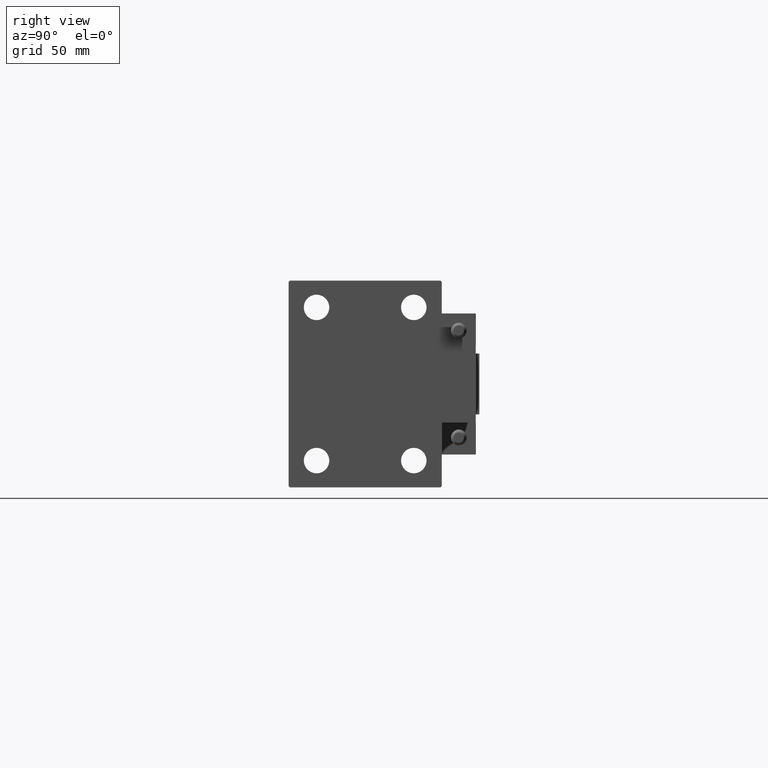
[diagram: clean part render]
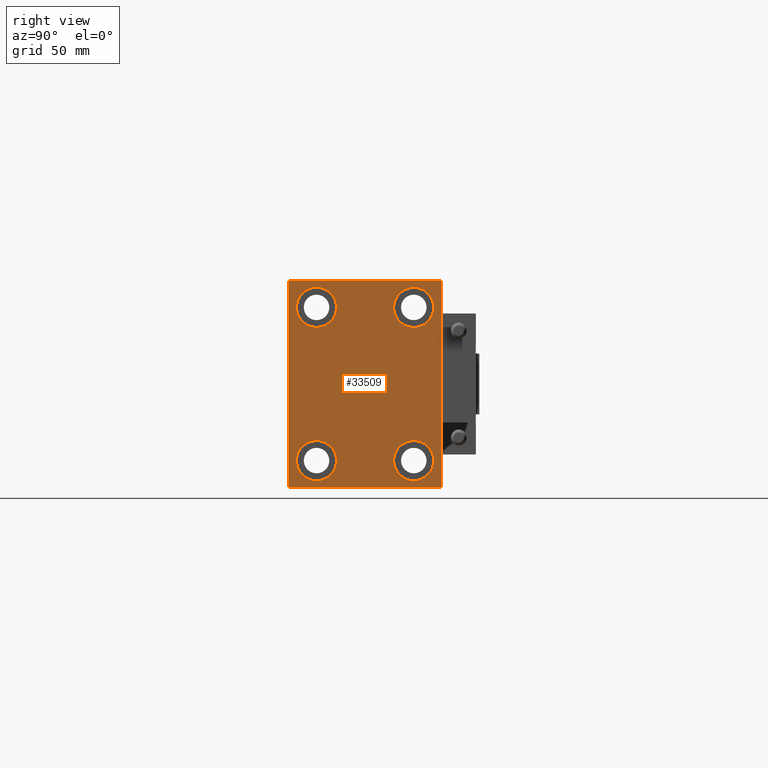
[diagram: same view with one face highlighted and labeled with its STEP entity id]
A machine part, right view. The second image highlights one B-rep face of the part: STEP entity #33509.
In plain terms, the highlighted planar face has unit normal (1, 0, 0).
Its self-contained STEP definition (entity closure, byte-faithful):
#137 = CARTESIAN_POINT ( 'NONE',  ( 183.0000000000000000, -19.99999999999999645, 39.74999999999999289 ) ) ;
#719 = ORIENTED_EDGE ( 'NONE', *, *, #50217, .T. ) ;
#722 = CARTESIAN_POINT ( 'NONE',  ( 183.0000000000000000, 31.00000000000002842, 42.50000000000000711 ) ) ;
#780 = DIRECTION ( 'NONE',  ( 0.000000000000000000, 0.000000000000000000, 1.000000000000000000 ) ) ;
#1802 = VECTOR ( 'NONE', #11736, 1000.000000000000000 ) ;
#1815 = PLANE ( 'NONE',  #49738 ) ;
#3113 = CARTESIAN_POINT ( 'NONE',  ( 183.0000000000000000, -20.00000000000000355, -31.49999999999999289 ) ) ;
#3131 = DIRECTION ( 'NONE',  ( -1.000000000000000000, -0.000000000000000000, -0.000000000000000000 ) ) ;
#3157 = VERTEX_POINT ( 'NONE', #47952 ) ;
#3392 = ORIENTED_EDGE ( 'NONE', *, *, #45235, .T. ) ;
#4288 = ORIENTED_EDGE ( 'NONE', *, *, #22567, .T. ) ;
#4429 = CIRCLE ( 'NONE', #42836, 8.250000000000000000 ) ;
#4623 = DIRECTION ( 'NONE',  ( -1.000000000000000000, -0.000000000000000000, -0.000000000000000000 ) ) ;
#5313 = ORIENTED_EDGE ( 'NONE', *, *, #13680, .T. ) ;
#5923 = CARTESIAN_POINT ( 'NONE',  ( 183.0000000000000000, 0.000000000000000000, 0.000000000000000000 ) ) ;
#6142 = CARTESIAN_POINT ( 'NONE',  ( 183.0000000000000000, -36.74999999999997868, 36.74999999999997868 ) ) ;
#6387 = DIRECTION ( 'NONE',  ( -1.000000000000000000, -0.000000000000000000, -0.000000000000000000 ) ) ;
#6424 = DIRECTION ( 'NONE',  ( -1.000000000000000000, -0.000000000000000000, -0.000000000000000000 ) ) ;
#6895 = LINE ( 'NONE', #6142, #34481 ) ;
#7136 = VERTEX_POINT ( 'NONE', #29167 ) ;
#7148 = LINE ( 'NONE', #23512, #1802 ) ;
#7907 = CARTESIAN_POINT ( 'NONE',  ( 183.0000000000000000, 31.50000000000000000, 42.00000000000003553 ) ) ;
#8346 = VECTOR ( 'NONE', #44273, 1000.000000000000000 ) ;
#9292 = CARTESIAN_POINT ( 'NONE',  ( 183.0000000000000000, 19.99999999999999645, -39.74999999999999289 ) ) ;
#9862 = EDGE_CURVE ( 'NONE', #18429, #45529, #33881, .T. ) ;
#9930 = CARTESIAN_POINT ( 'NONE',  ( 183.0000000000000000, -19.99999999999999645, 31.50000000000000000 ) ) ;
#10083 = CARTESIAN_POINT ( 'NONE',  ( 183.0000000000000000, 19.99999999999999645, -31.49999999999999289 ) ) ;
#10250 = VERTEX_POINT ( 'NONE', #48829 ) ;
#10555 = EDGE_LOOP ( 'NONE', ( #33079, #4288 ) ) ;
#10557 = DIRECTION ( 'NONE',  ( 0.000000000000000000, 0.000000000000000000, 1.000000000000000000 ) ) ;
#10869 = CARTESIAN_POINT ( 'NONE',  ( 183.0000000000000000, -31.50000000000000000, 41.99999999999996447 ) ) ;
#11736 = DIRECTION ( 'NONE',  ( 0.000000000000000000, 0.000000000000000000, -1.000000000000000000 ) ) ;
#12302 = CARTESIAN_POINT ( 'NONE',  ( 183.0000000000000000, -20.00000000000000355, -31.49999999999999289 ) ) ;
#12367 = CARTESIAN_POINT ( 'NONE',  ( 183.0000000000000000, 31.50000000000001421, -42.50000000000000711 ) ) ;
#12437 = DIRECTION ( 'NONE',  ( 0.000000000000000000, 1.000000000000000000, 0.000000000000000000 ) ) ;
#12559 = CARTESIAN_POINT ( 'NONE',  ( 183.0000000000000000, -19.99999999999999645, 31.50000000000000000 ) ) ;
#12704 = CARTESIAN_POINT ( 'NONE',  ( 183.0000000000000000, 20.00000000000000355, 39.74999999999999289 ) ) ;
#12809 = LINE ( 'NONE', #13063, #8346 ) ;
#12838 = FACE_BOUND ( 'NONE', #28590, .T. ) ;
#13063 = CARTESIAN_POINT ( 'NONE',  ( 183.0000000000000000, 31.50000000000000000, 42.50000000000000711 ) ) ;
#13399 = ORIENTED_EDGE ( 'NONE', *, *, #50251, .T. ) ;
#13680 = EDGE_CURVE ( 'NONE', #50250, #34160, #32534, .T. ) ;
#13723 = EDGE_LOOP ( 'NONE', ( #13399, #20970 ) ) ;
#14056 = CARTESIAN_POINT ( 'NONE',  ( 183.0000000000000000, 20.00000000000000355, 31.50000000000000000 ) ) ;
#14239 = VECTOR ( 'NONE', #12437, 1000.000000000000000 ) ;
#14688 = CARTESIAN_POINT ( 'NONE',  ( 183.0000000000000000, 36.75000000000002132, 36.75000000000002132 ) ) ;
#14718 = AXIS2_PLACEMENT_3D ( 'NONE', #12302, #4623, #780 ) ;
#14756 = VECTOR ( 'NONE', #32313, 1000.000000000000114 ) ;
#15367 = AXIS2_PLACEMENT_3D ( 'NONE', #9930, #18100, #33946 ) ;
#16309 = CARTESIAN_POINT ( 'NONE',  ( 183.0000000000000000, -30.99999999999997158, 42.49999999999999289 ) ) ;
#16610 = VERTEX_POINT ( 'NONE', #45906 ) ;
#16745 = VERTEX_POINT ( 'NONE', #39725 ) ;
#16796 = CARTESIAN_POINT ( 'NONE',  ( 183.0000000000000000, 31.50000000000001421, -42.00000000000000711 ) ) ;
#17424 = FACE_BOUND ( 'NONE', #10555, .T. ) ;
#17773 = EDGE_CURVE ( 'NONE', #23044, #18429, #43832, .T. ) ;
#17871 = AXIS2_PLACEMENT_3D ( 'NONE', #42012, #3131, #10557 ) ;
#17968 = CARTESIAN_POINT ( 'NONE',  ( 183.0000000000000000, -20.00000000000000355, -39.74999999999999289 ) ) ;
#17981 = LINE ( 'NONE', #33332, #47101 ) ;
#18100 = DIRECTION ( 'NONE',  ( -1.000000000000000000, -0.000000000000000000, -0.000000000000000000 ) ) ;
#18176 = EDGE_CURVE ( 'NONE', #34160, #50250, #22942, .T. ) ;
#18319 = ORIENTED_EDGE ( 'NONE', *, *, #27088, .T. ) ;
#18429 = VERTEX_POINT ( 'NONE', #7907 ) ;
#18749 = DIRECTION ( 'NONE',  ( -1.000000000000000000, -0.000000000000000000, -0.000000000000000000 ) ) ;
#18971 = DIRECTION ( 'NONE',  ( -1.000000000000000000, -0.000000000000000000, -0.000000000000000000 ) ) ;
#19739 = EDGE_CURVE ( 'NONE', #10250, #36775, #37653, .T. ) ;
#20653 = EDGE_LOOP ( 'NONE', ( #27334, #25297 ) ) ;
#20970 = ORIENTED_EDGE ( 'NONE', *, *, #40544, .T. ) ;
#21521 = DIRECTION ( 'NONE',  ( 1.000000000000000000, 0.000000000000000000, 0.000000000000000000 ) ) ;
#21743 = DIRECTION ( 'NONE',  ( 0.000000000000000000, -0.7071067811865474617, -0.7071067811865474617 ) ) ;
#22564 = CARTESIAN_POINT ( 'NONE',  ( 183.0000000000000000, -19.99999999999999645, 23.25000000000000355 ) ) ;
#22567 = EDGE_CURVE ( 'NONE', #36775, #10250, #39011, .T. ) ;
#22899 = ORIENTED_EDGE ( 'NONE', *, *, #45403, .T. ) ;
#22942 = CIRCLE ( 'NONE', #35158, 8.249999999999992895 ) ;
#23044 = VERTEX_POINT ( 'NONE', #16796 ) ;
#23512 = CARTESIAN_POINT ( 'NONE',  ( 183.0000000000000000, -31.50000000000000000, 42.49999999999999289 ) ) ;
#23627 = DIRECTION ( 'NONE',  ( 0.000000000000000000, -1.632680918566406300E-16, 1.000000000000000000 ) ) ;
#23670 = EDGE_LOOP ( 'NONE', ( #3392, #36765, #22899, #18319, #719, #44491, #33659, #44259 ) ) ;
#23897 = EDGE_CURVE ( 'NONE', #16745, #42238, #41319, .T. ) ;
#25105 = VERTEX_POINT ( 'NONE', #17968 ) ;
#25208 = DIRECTION ( 'NONE',  ( 0.000000000000000000, 0.000000000000000000, 1.000000000000000000 ) ) ;
#25297 = ORIENTED_EDGE ( 'NONE', *, *, #23897, .T. ) ;
#25362 = CIRCLE ( 'NONE', #14718, 8.250000000000000000 ) ;
#25613 = FACE_BOUND ( 'NONE', #20653, .T. ) ;
#27088 = EDGE_CURVE ( 'NONE', #16610, #33922, #17981, .T. ) ;
#27334 = ORIENTED_EDGE ( 'NONE', *, *, #31444, .T. ) ;
#27650 = DIRECTION ( 'NONE',  ( 0.000000000000000000, 0.000000000000000000, 1.000000000000000000 ) ) ;
#28338 = VECTOR ( 'NONE', #46165, 1000.000000000000114 ) ;
#28590 = EDGE_LOOP ( 'NONE', ( #5313, #37322 ) ) ;
#29167 = CARTESIAN_POINT ( 'NONE',  ( 183.0000000000000000, 31.00000000000001421, -42.50000000000000711 ) ) ;
#29500 = AXIS2_PLACEMENT_3D ( 'NONE', #14056, #6387, #29661 ) ;
#29507 = DIRECTION ( 'NONE',  ( -0.000000000000000000, 0.7071067811865474617, -0.7071067811865474617 ) ) ;
#29661 = DIRECTION ( 'NONE',  ( 0.000000000000000000, 0.000000000000000000, 1.000000000000000000 ) ) ;
#30194 = CARTESIAN_POINT ( 'NONE',  ( 183.0000000000000000, 19.99999999999999645, -31.49999999999999289 ) ) ;
#31444 = EDGE_CURVE ( 'NONE', #42238, #16745, #39818, .T. ) ;
#31551 = LINE ( 'NONE', #31802, #14756 ) ;
#31802 = CARTESIAN_POINT ( 'NONE',  ( 183.0000000000000000, 36.75000000000001421, -36.75000000000001421 ) ) ;
#32313 = DIRECTION ( 'NONE',  ( -0.000000000000000000, 0.7071067811865474617, 0.7071067811865474617 ) ) ;
#32534 = CIRCLE ( 'NONE', #15367, 8.249999999999992895 ) ;
#33079 = ORIENTED_EDGE ( 'NONE', *, *, #19739, .T. ) ;
#33332 = CARTESIAN_POINT ( 'NONE',  ( 183.0000000000000000, -36.75000000000000711, -36.75000000000000711 ) ) ;
#33509 = ADVANCED_FACE ( 'NONE', ( #25613, #12838, #17424, #40203, #44045 ), #1815, .T. ) ;
#33659 = ORIENTED_EDGE ( 'NONE', *, *, #17773, .T. ) ;
#33727 = CARTESIAN_POINT ( 'NONE',  ( 183.0000000000000000, -31.00000000000000000, -42.50000000000000711 ) ) ;
#33786 = DIRECTION ( 'NONE',  ( 0.000000000000000000, 0.000000000000000000, 1.000000000000000000 ) ) ;
#33851 = DIRECTION ( 'NONE',  ( 0.000000000000000000, 0.000000000000000000, 1.000000000000000000 ) ) ;
#33881 = LINE ( 'NONE', #14688, #28338 ) ;
#33922 = VERTEX_POINT ( 'NONE', #33727 ) ;
#33946 = DIRECTION ( 'NONE',  ( 0.000000000000000000, 0.000000000000000000, 1.000000000000000000 ) ) ;
#34160 = VERTEX_POINT ( 'NONE', #137 ) ;
#34481 = VECTOR ( 'NONE', #21743, 1000.000000000000114 ) ;
#35158 = AXIS2_PLACEMENT_3D ( 'NONE', #12559, #43767, #27650 ) ;
#35715 = LINE ( 'NONE', #47494, #14239 ) ;
#36178 = VERTEX_POINT ( 'NONE', #10869 ) ;
#36765 = ORIENTED_EDGE ( 'NONE', *, *, #45305, .T. ) ;
#36775 = VERTEX_POINT ( 'NONE', #12704 ) ;
#37322 = ORIENTED_EDGE ( 'NONE', *, *, #18176, .T. ) ;
#37653 = CIRCLE ( 'NONE', #29500, 8.249999999999992895 ) ;
#38078 = AXIS2_PLACEMENT_3D ( 'NONE', #30194, #6424, #33786 ) ;
#39011 = CIRCLE ( 'NONE', #17871, 8.249999999999992895 ) ;
#39032 = VERTEX_POINT ( 'NONE', #16309 ) ;
#39725 = CARTESIAN_POINT ( 'NONE',  ( 183.0000000000000000, 19.99999999999999645, -23.24999999999999289 ) ) ;
#39818 = CIRCLE ( 'NONE', #47209, 8.250000000000000000 ) ;
#40203 = FACE_BOUND ( 'NONE', #13723, .T. ) ;
#40544 = EDGE_CURVE ( 'NONE', #3157, #25105, #25362, .T. ) ;
#41319 = CIRCLE ( 'NONE', #38078, 8.250000000000000000 ) ;
#42012 = CARTESIAN_POINT ( 'NONE',  ( 183.0000000000000000, 20.00000000000000355, 31.50000000000000000 ) ) ;
#42138 = EDGE_CURVE ( 'NONE', #7136, #23044, #31551, .T. ) ;
#42238 = VERTEX_POINT ( 'NONE', #9292 ) ;
#42505 = VECTOR ( 'NONE', #23627, 1000.000000000000000 ) ;
#42836 = AXIS2_PLACEMENT_3D ( 'NONE', #3113, #18971, #25208 ) ;
#43767 = DIRECTION ( 'NONE',  ( -1.000000000000000000, -0.000000000000000000, -0.000000000000000000 ) ) ;
#43832 = LINE ( 'NONE', #12367, #42505 ) ;
#44045 = FACE_OUTER_BOUND ( 'NONE', #23670, .T. ) ;
#44259 = ORIENTED_EDGE ( 'NONE', *, *, #9862, .T. ) ;
#44273 = DIRECTION ( 'NONE',  ( 0.000000000000000000, -1.000000000000000000, -2.202823461557850341E-16 ) ) ;
#44491 = ORIENTED_EDGE ( 'NONE', *, *, #42138, .T. ) ;
#45235 = EDGE_CURVE ( 'NONE', #45529, #39032, #12809, .T. ) ;
#45305 = EDGE_CURVE ( 'NONE', #39032, #36178, #6895, .T. ) ;
#45403 = EDGE_CURVE ( 'NONE', #36178, #16610, #7148, .T. ) ;
#45529 = VERTEX_POINT ( 'NONE', #722 ) ;
#45906 = CARTESIAN_POINT ( 'NONE',  ( 183.0000000000000000, -31.50000000000000000, -42.00000000000000711 ) ) ;
#46165 = DIRECTION ( 'NONE',  ( -0.000000000000000000, -0.7071067811865474617, 0.7071067811865474617 ) ) ;
#47101 = VECTOR ( 'NONE', #29507, 1000.000000000000114 ) ;
#47209 = AXIS2_PLACEMENT_3D ( 'NONE', #10083, #18749, #33851 ) ;
#47494 = CARTESIAN_POINT ( 'NONE',  ( 183.0000000000000000, -31.50000000000000000, -42.50000000000000711 ) ) ;
#47952 = CARTESIAN_POINT ( 'NONE',  ( 183.0000000000000000, -20.00000000000000355, -23.24999999999999289 ) ) ;
#48650 = DIRECTION ( 'NONE',  ( 0.000000000000000000, 0.000000000000000000, -1.000000000000000000 ) ) ;
#48829 = CARTESIAN_POINT ( 'NONE',  ( 183.0000000000000000, 20.00000000000000355, 23.25000000000000355 ) ) ;
#49738 = AXIS2_PLACEMENT_3D ( 'NONE', #5923, #21521, #48650 ) ;
#50217 = EDGE_CURVE ( 'NONE', #33922, #7136, #35715, .T. ) ;
#50250 = VERTEX_POINT ( 'NONE', #22564 ) ;
#50251 = EDGE_CURVE ( 'NONE', #25105, #3157, #4429, .T. ) ;